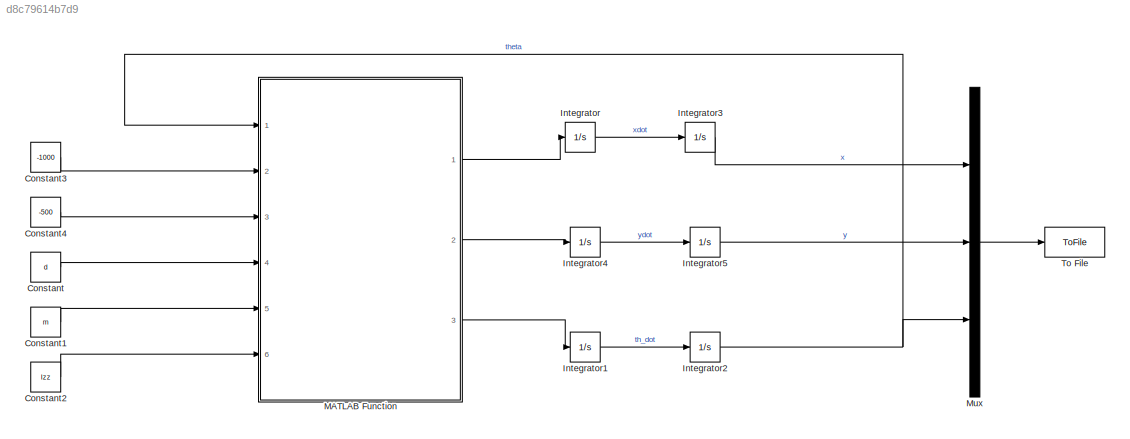
MODEL slx_d8c79614b7d9
KIND model
CONFIG AbsTol = auto
CONFIG EnableMultiTasking = off
CONFIG FixedStep = auto
CONFIG MaxStep = auto
CONFIG MinStep = auto
CONFIG RelTol = 1e-3
CONFIG SampleTimeConstraint = Unconstrained
CONFIG SolverName = VariableStepAuto
CONFIG StartTime = 0.0
CONFIG StopTime = 10.0
BLOCK [Constant] Constant
  Value = d
BLOCK [Constant] Constant1
  Value = m
BLOCK [Constant] Constant2
  Value = Izz
BLOCK [Constant] Constant3
  Value = -1000
BLOCK [Constant] Constant4
  Value = -500
BLOCK [Integrator] Integrator
  Ports = [1, 1]
BLOCK [Integrator] Integrator1
  Ports = [1, 1]
BLOCK [Integrator] Integrator2
  Ports = [1, 1]
BLOCK [Integrator] Integrator3
  Ports = [1, 1]
BLOCK [Integrator] Integrator4
  Ports = [1, 1]
BLOCK [Integrator] Integrator5
  Ports = [1, 1]
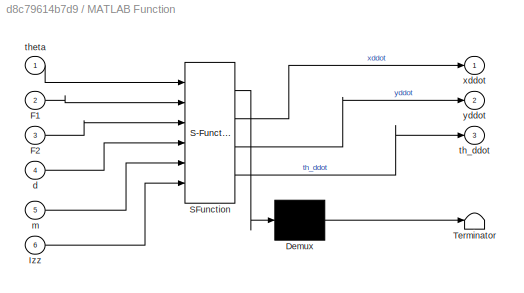
BLOCK [SubSystem] MATLAB Function
  ErrorFcn = Stateflow.Translate.translate
  PermitHierarchicalResolution = ExplicitOnly
  Ports = [6, 3]
  RequestExecContextInheritance = off
  SFBlockType = MATLAB Function
  TreatAsAtomicUnit = on
BLOCK [Demux] MATLAB Function/ Demux 
  Outputs = 1
  Ports = [1, 1]
BLOCK [S-Function] MATLAB Function/ SFunction 
  EnableBusSupport = on
  FunctionName = sf_sfun
  PortCounts = [6 4]
  Ports = [6, 4]
  SFcnIsStateOwnerBlock = off
  SFunctionDeploymentMode = off
  Tag = Stateflow S-Function 2
BLOCK [Terminator] MATLAB Function/ Terminator 
BLOCK [Inport] MATLAB Function/F1
  Port = 2
BLOCK [Inport] MATLAB Function/F2
  Port = 3
BLOCK [Inport] MATLAB Function/Izz
  Port = 6
BLOCK [Inport] MATLAB Function/d
  Port = 4
BLOCK [Inport] MATLAB Function/m
  Port = 5
BLOCK [Outport] MATLAB Function/th_ddot
  Port = 3
BLOCK [Inport] MATLAB Function/theta
BLOCK [Outport] MATLAB Function/xddot
BLOCK [Outport] MATLAB Function/yddot
  Port = 2
BLOCK [Mux] Mux
  DisplayOption = bar
  Inputs = 3
  Ports = [3, 1]
BLOCK [ToFile] To File
  Filename = var.mat
  MatrixName = tot
  Ports = [1]
LINE Constant1:1 -> MATLAB Function:5
LINE Constant2:1 -> MATLAB Function:6
LINE Constant3:1 -> MATLAB Function:2
LINE Constant4:1 -> MATLAB Function:3
LINE Constant:1 -> MATLAB Function:4
LINE Integrator1:1 -> Integrator2:1
NET Integrator2:1 -> MATLAB Function:1, Mux:3
LINE Integrator3:1 -> Mux:1
LINE Integrator4:1 -> Integrator5:1
LINE Integrator5:1 -> Mux:2
LINE Integrator:1 -> Integrator3:1
LINE MATLAB Function:1 -> Integrator:1
LINE MATLAB Function:2 -> Integrator4:1
LINE MATLAB Function:3 -> Integrator1:1
LINE Mux:1 -> To File:1
note: NET lines group one-source signal fan-out (src -> all destinations, sorted); 1:1 wires keep LINE
CHART MATLAB Function states=1 transitions=1
  STATE_LABEL 'eML_blk_kernel()'
  STATE_LABEL 'SCRIPT:\nfunction [xddot,yddot,th_ddot] = fcn(theta, F1, F2, d, m, Izz)\n\nxddot = -(F1+F2)*cos(theta)/m;\nyddot = -(F1+F2)*sin(theta)/m;\nth_ddot = -(F2 - F1)*(d/(2*Izz));\n\nend \n\n\n\n\n'
CHART  states=0 transitions=0
